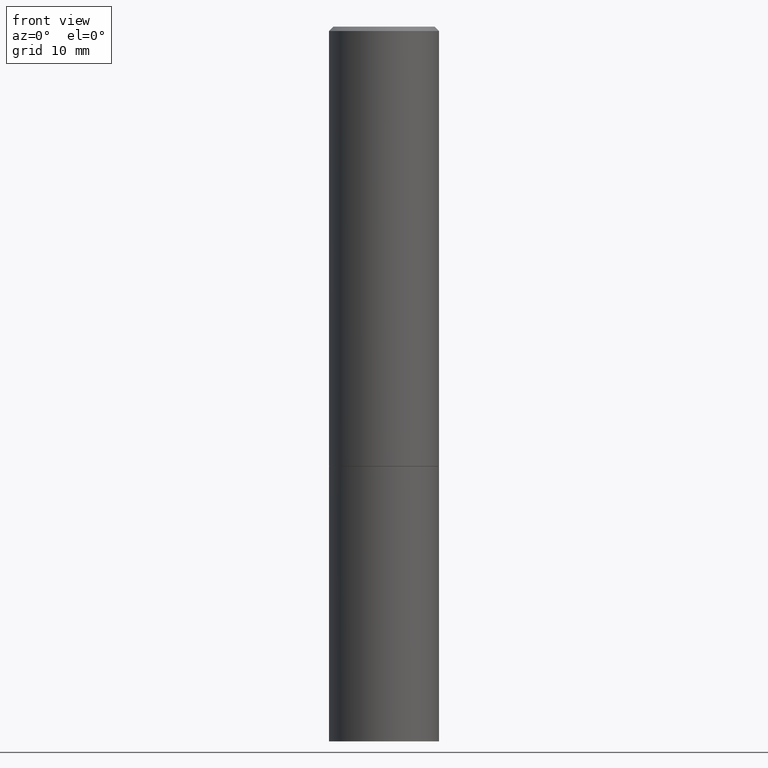
[diagram: clean part render]
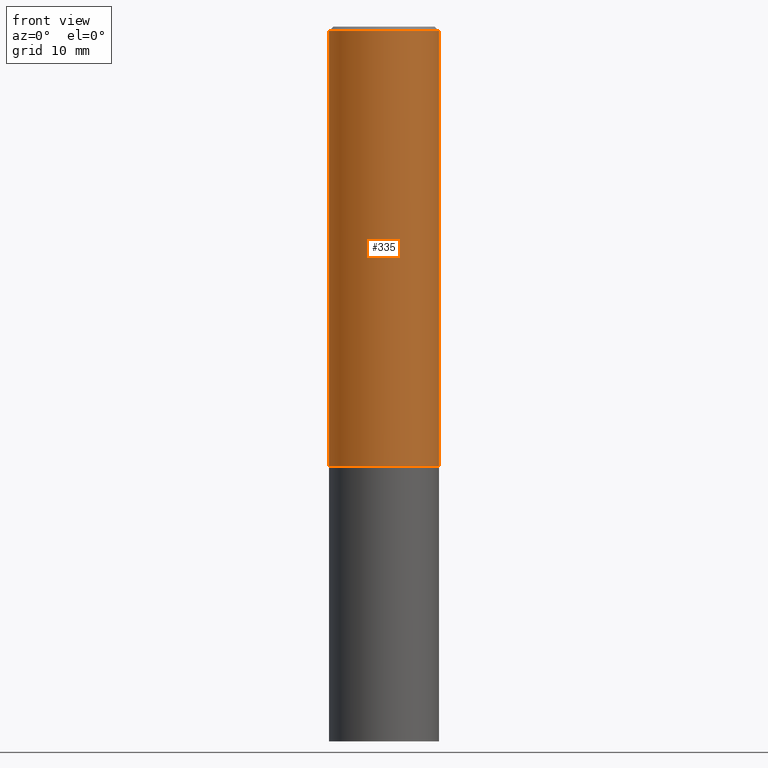
[diagram: same view with one face highlighted and labeled with its STEP entity id]
A machine part, front view. The second image highlights one B-rep face of the part: STEP entity #335.
In plain terms, the highlighted cylindrical surface (partial cylindrical patch) has radius 6.35 mm, axis along (-0, 0, 1).
Its self-contained STEP definition (entity closure, byte-faithful):
#10 = FACE_OUTER_BOUND ( 'NONE', #254, .T. ) ;
#18 = EDGE_CURVE ( 'NONE', #193, #107, #264, .T. ) ;
#33 = VERTEX_POINT ( 'NONE', #123 ) ;
#36 = CARTESIAN_POINT ( 'NONE',  ( 4.890937612370287172E-31, -6.982962677686310098E-17, -0.02000000000000005593 ) ) ;
#40 = LINE ( 'NONE', #345, #333 ) ;
#42 = DIRECTION ( 'NONE',  ( 1.000000000000000000, -6.982962677686266711E-15, 0.000000000000000000 ) ) ;
#70 = DIRECTION ( 'NONE',  ( -2.445468806185136597E-29, 3.491481338843145583E-15, 1.000000000000000000 ) ) ;
#92 = CARTESIAN_POINT ( 'NONE',  ( -0.2499999999999998057, 1.675911042644702196E-15, -0.02000000000000005593 ) ) ;
#95 = DIRECTION ( 'NONE',  ( -2.445468806185136877E-29, 3.491481338843145188E-15, 1.000000000000000000 ) ) ;
#107 = VERTEX_POINT ( 'NONE', #365 ) ;
#122 = AXIS2_PLACEMENT_3D ( 'NONE', #125, #209, #126 ) ;
#123 = CARTESIAN_POINT ( 'NONE',  ( -0.2500000000000000000, -1.748293572161903489E-15, -1.998999999999999888 ) ) ;
#125 = CARTESIAN_POINT ( 'NONE',  ( 0.000000000000000000, 0.000000000000000000, 0.000000000000000000 ) ) ;
#126 = DIRECTION ( 'NONE',  ( 1.000000000000000000, -6.982962677686266711E-15, 4.876176775795935793E-29 ) ) ;
#137 = ORIENTED_EDGE ( 'NONE', *, *, #228, .F. ) ;
#152 = CARTESIAN_POINT ( 'NONE',  ( 0.2500000000000000000, -8.725211865769014047E-15, -1.998999999999999888 ) ) ;
#173 = ORIENTED_EDGE ( 'NONE', *, *, #18, .F. ) ;
#184 = CARTESIAN_POINT ( 'NONE',  ( 4.888492143564087591E-29, -6.979471196347447369E-15, -1.998999999999999888 ) ) ;
#185 = DIRECTION ( 'NONE',  ( 1.000000000000000000, -6.982962677686266711E-15, 0.000000000000000000 ) ) ;
#193 = VERTEX_POINT ( 'NONE', #92 ) ;
#195 = VECTOR ( 'NONE', #95, 39.37007874015748143 ) ;
#209 = DIRECTION ( 'NONE',  ( -2.445468806185136597E-29, 3.491481338843145583E-15, 1.000000000000000000 ) ) ;
#227 = CIRCLE ( 'NONE', #320, 0.2500000000000000000 ) ;
#228 = EDGE_CURVE ( 'NONE', #33, #193, #40, .T. ) ;
#237 = LINE ( 'NONE', #349, #195 ) ;
#254 = EDGE_LOOP ( 'NONE', ( #137, #330, #356, #173 ) ) ;
#259 = DIRECTION ( 'NONE',  ( -2.445468806185136877E-29, 3.491481338843145188E-15, 1.000000000000000000 ) ) ;
#264 = CIRCLE ( 'NONE', #303, 0.2499999999999998057 ) ;
#296 = DIRECTION ( 'NONE',  ( -2.445468806185136597E-29, 3.491481338843145583E-15, 1.000000000000000000 ) ) ;
#303 = AXIS2_PLACEMENT_3D ( 'NONE', #36, #70, #185 ) ;
#320 = AXIS2_PLACEMENT_3D ( 'NONE', #184, #296, #42 ) ;
#321 = CYLINDRICAL_SURFACE ( 'NONE', #122, 0.2499999999999998890 ) ;
#325 = VERTEX_POINT ( 'NONE', #152 ) ;
#330 = ORIENTED_EDGE ( 'NONE', *, *, #363, .T. ) ;
#333 = VECTOR ( 'NONE', #259, 39.37007874015748143 ) ;
#335 = ADVANCED_FACE ( 'NONE', ( #10 ), #321, .T. ) ;
#344 = EDGE_CURVE ( 'NONE', #325, #107, #237, .T. ) ;
#345 = CARTESIAN_POINT ( 'NONE',  ( -0.2499999999999998890, 1.776356839400249676E-15, -1.229733772563726025E-29 ) ) ;
#349 = CARTESIAN_POINT ( 'NONE',  ( 0.2499999999999998890, -1.745740669421565889E-15, 1.219044193948983388E-29 ) ) ;
#356 = ORIENTED_EDGE ( 'NONE', *, *, #344, .T. ) ;
#363 = EDGE_CURVE ( 'NONE', #33, #325, #227, .T. ) ;
#365 = CARTESIAN_POINT ( 'NONE',  ( 0.2499999999999998057, -1.784954126219744611E-15, -0.02000000000000005593 ) ) ;